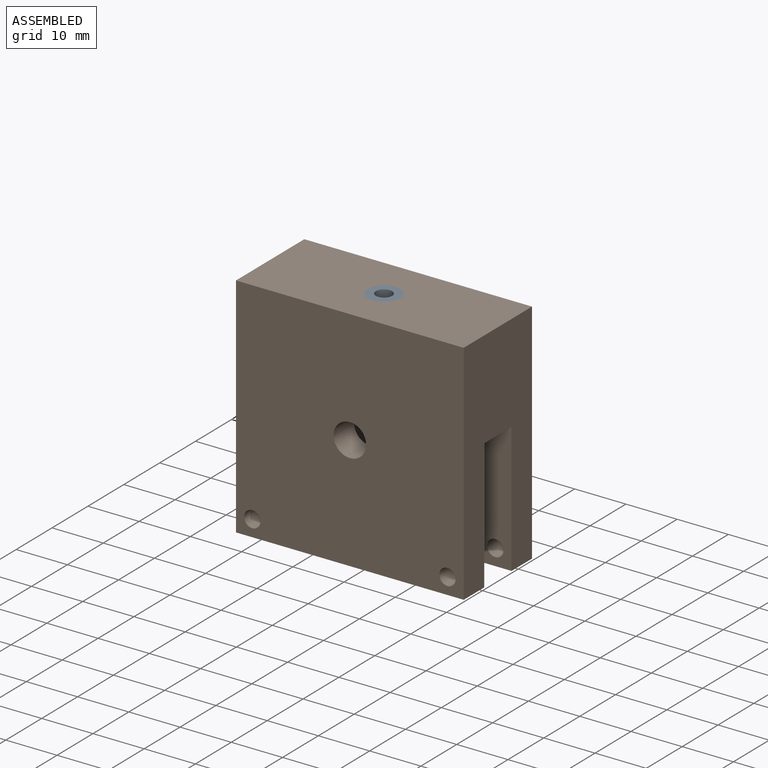
[diagram: assembled view]
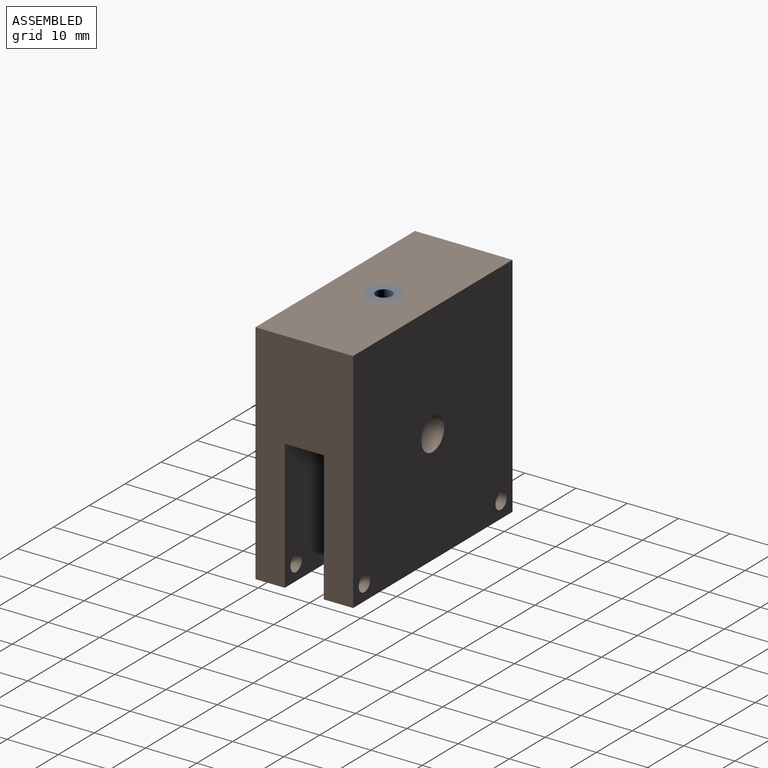
[diagram: assembled view, second angle]
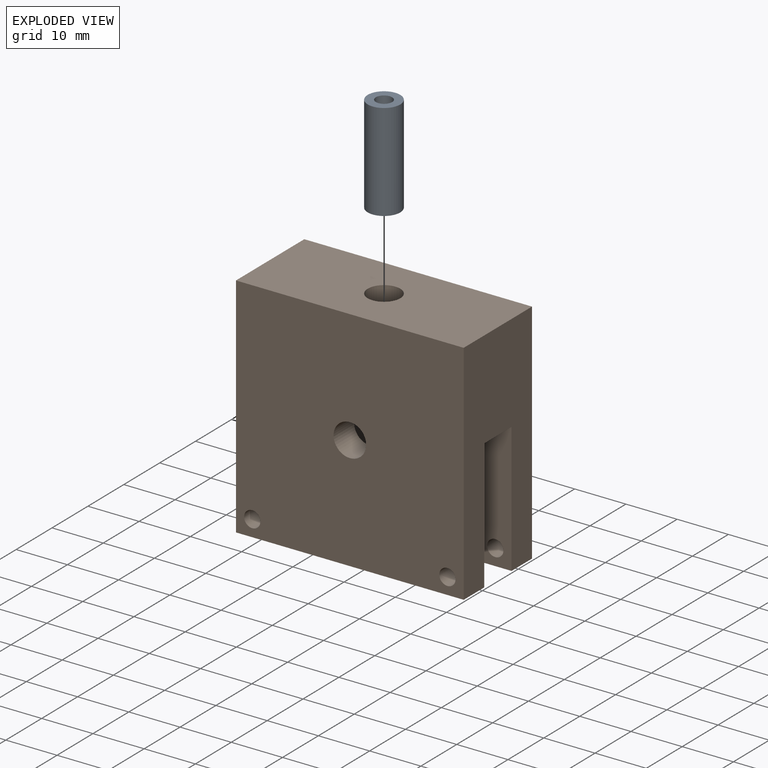
[diagram: exploded view]
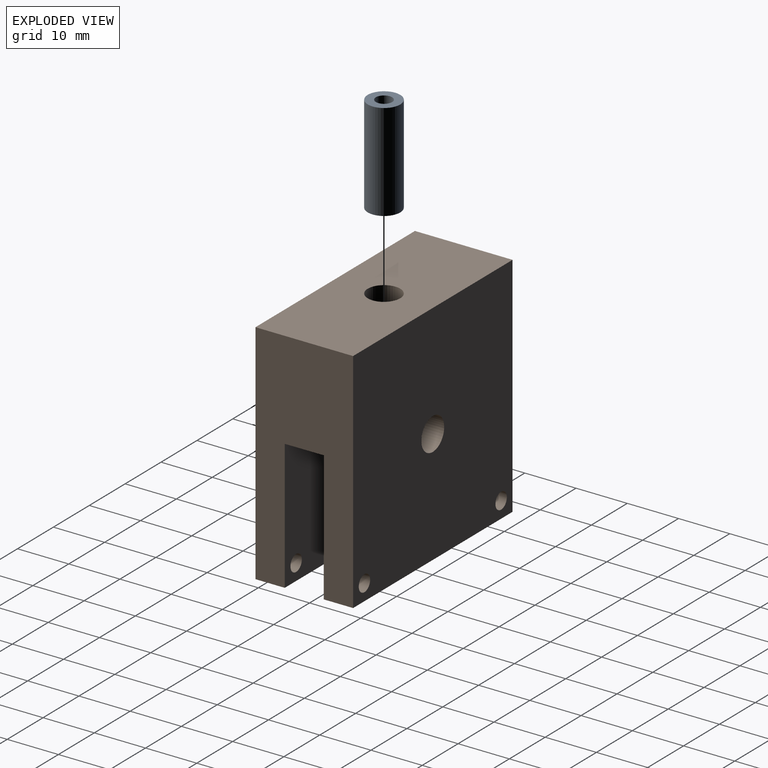
[diagram: exploded view, second angle]
ASSEMBLY  parts=2 mates=2
PART A: 4 faces, bbox 6.4x6.4x19.1 mm
  f0: cylinder r=1.59mm len=19.05mm, axis (0,0,-1), area 190mm2, adj f2,f3
  f1: cylinder r=3.17mm len=19.05mm, axis (0,0,-1), area 380mm2, adj f2,f3
  f2: plane 6.35x6.35mm, normal (0,0,1), area 23.8mm2, adj f0,f1
  f3: plane 6.35x6.35mm, normal (0,0,-1), area 23.8mm2, adj f0,f1
PART B: 17 faces, bbox 44.5x19.1x44.5 mm
  f0: plane 44.45x5.72mm, normal (0,0,-1), area 254mm2, adj f1,f2,f7,f9
  f1: plane 44.45x19.05mm, normal (-1,0,0), area 653.2mm2, adj f0,f4,f5,f6,f7,f8,f9,f10
  f2: plane 44.45x19.05mm, normal (1,0,0), area 653.2mm2, adj f0,f4,f5,f6,f7,f8,f9,f10
  f3: cylinder r=3.17mm len=19.05mm, axis (0,0,1), area 380mm2, adj f4,f10
  f4: plane 44.45x19.05mm, normal (0,0,1), area 815.1mm2, adj f1,f2,f3,f6,f7
  f5: plane 44.45x5.72mm, normal (0,0,-1), area 254mm2, adj f1,f2,f6,f8
  f6: plane 44.45x44.45mm, normal (0,-1,0), area 1928.3mm2, adj f1,f2,f4,f5,f14,f15,f16
  f7: plane 44.45x44.45mm, normal (0,1,0), area 1928.3mm2, adj f0,f1,f2,f4,f11,f12,f13
  f8: plane 44.45x25.4mm, normal (0,1,0), area 1081.5mm2, adj f1,f2,f5,f10,f14,f15,f16
  f9: plane 44.45x25.4mm, normal (0,-1,0), area 1081.5mm2, adj f0,f1,f2,f10,f11,f12,f13
  f10: plane 44.45x7.62mm, normal (0,0,-1), area 307mm2, adj f1,f2,f3,f8,f9
  f11: cylinder r=1.59mm len=5.72mm, axis (0,1,0), area 57mm2, adj f7,f9
  f12: cylinder r=1.59mm len=5.72mm, axis (0,1,0), area 57mm2, adj f7,f9
  f13: cylinder r=3.17mm len=6.35mm, axis (0,1,0), area 114mm2, adj f7,f9
  f14: cylinder r=1.59mm len=5.72mm, axis (0,1,0), area 57mm2, adj f6,f8
  f15: cylinder r=1.59mm len=5.72mm, axis (0,1,0), area 57mm2, adj f6,f8
  f16: cylinder r=3.17mm len=6.35mm, axis (0,1,0), area 114mm2, adj f6,f8
PLACE A t=(5.19,-4.83,-3.79)mm
PLACE B t=(5.19,4.7,-6.97)mm
MATE cylindrical A.f1 <-> B.f3  axis (0,0,-1) through (5.19,-4.83,-3.79)mm
MATE planar A.f1 <-> B.f3  axis (0,0,1) through (5.19,-4.83,15.26)mm
